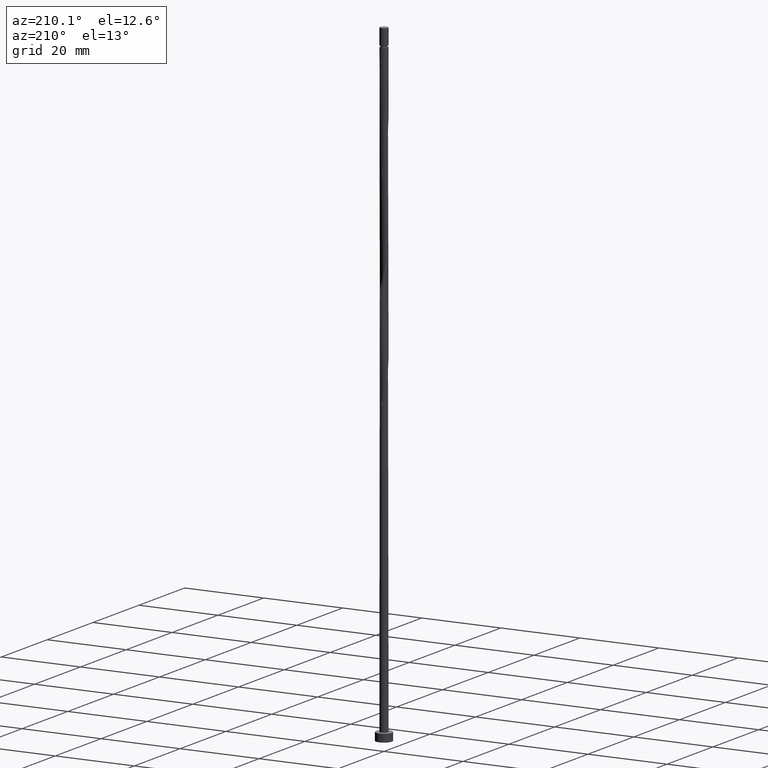
[diagram: clean part render]
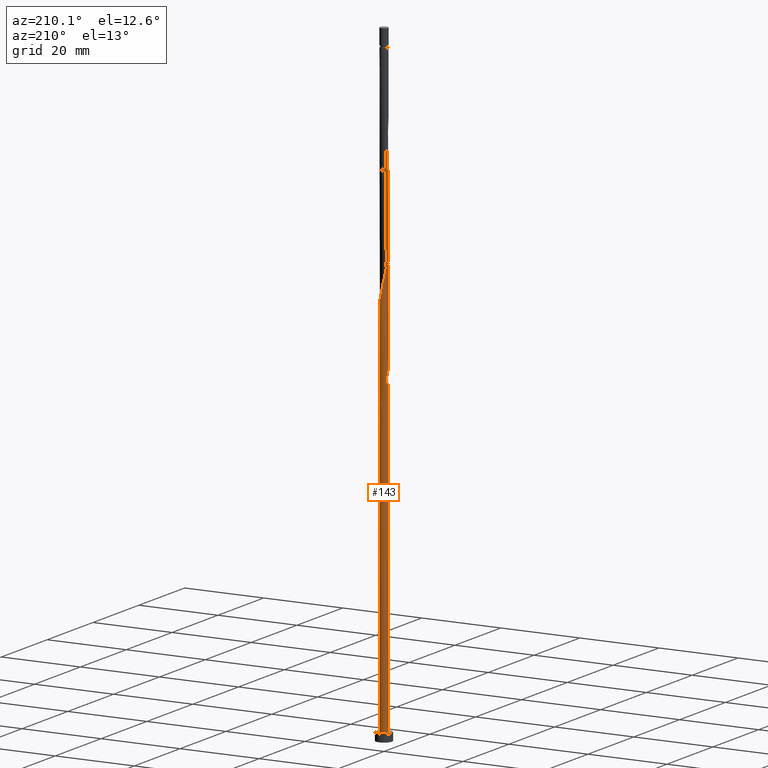
[diagram: same view with one face highlighted and labeled with its STEP entity id]
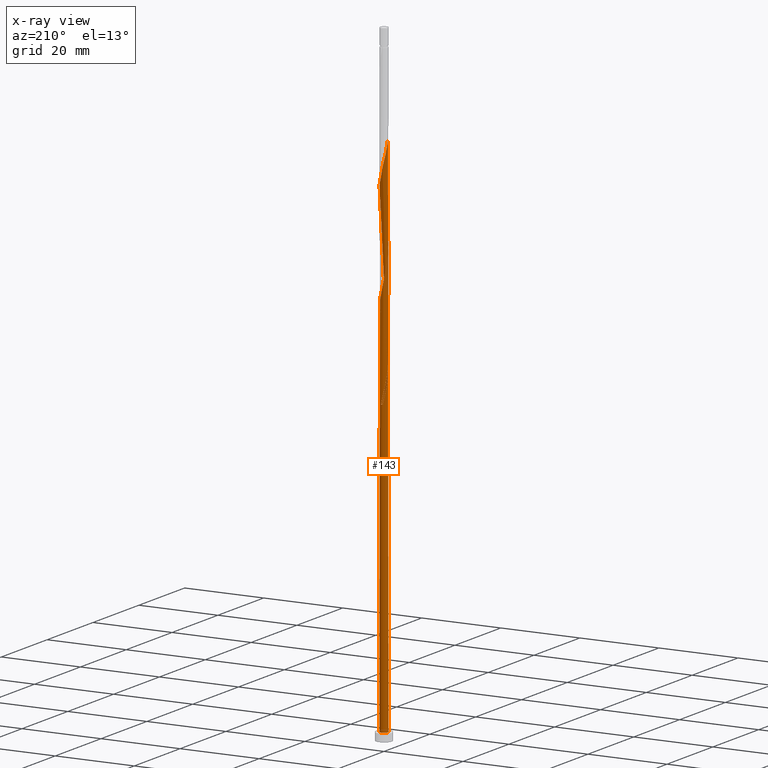
[diagram: x-ray of the same camera — body ghosted, the highlighted face saturated]
A machine part, auxiliary view. The second image highlights one B-rep face of the part: STEP entity #143.
The next image is the same camera in x-ray: the body ghosted, the highlighted face saturated — about 0% of this face is hidden behind the body in this view.
In plain terms, the highlighted cylindrical surface (bore or boss wall) has radius 1 mm, axis along (-0, -0, -1).
Its self-contained STEP definition (entity closure, byte-faithful):
#11 = CARTESIAN_POINT ( 'NONE',  ( -0.6972353404242072061, 0.7168422979034807518, 131.3740968072469002 ) ) ;
#16 = CARTESIAN_POINT ( 'NONE',  ( -1.000000000000001554, 0.02877552652382344908, 83.01054419092046999 ) ) ;
#24 = CARTESIAN_POINT ( 'NONE',  ( -0.8709502235331723075, 0.4913712528501434917, 132.5862180193680615 ) ) ;
#25 = EDGE_CURVE ( 'NONE', #42, #664, #83, .T. ) ;
#42 = VERTEX_POINT ( 'NONE', #848 ) ;
#43 = DIRECTION ( 'NONE',  ( -0.000000000000000000, -0.000000000000000000, -1.000000000000000000 ) ) ;
#48 = CARTESIAN_POINT ( 'NONE',  ( -0.7242137496448685097, -0.7044051693801141045, 84.70743014058018616 ) ) ;
#54 = CARTESIAN_POINT ( 'NONE',  ( -0.3624206617887645865, -0.9320146264456351526, 86.52561195876202760 ) ) ;
#64 = CARTESIAN_POINT ( 'NONE',  ( -0.8709502235331723075, 0.4913712528501434917, 79.25288468603473291 ) ) ;
#79 = CARTESIAN_POINT ( 'NONE',  ( 0.8003017030802060949, -0.6165949901442836500, 91.98015741330743822 ) ) ;
#83 =( BOUNDED_CURVE ( )  B_SPLINE_CURVE ( 2, ( #355, #16, #1322, #983, #1076, #1447, #1527, #814, #1300, #1182, #582, #1065, #477, #606, #483 ),
 .UNSPECIFIED., .F., .T. ) 
 B_SPLINE_CURVE_WITH_KNOTS ( ( 3, 2, 2, 2, 2, 2, 2, 3 ),
 ( 0.9295252162417509956, 0.9318181818181817677, 0.9431818181818182323, 0.9545454545454545858, 0.9659090909090909394, 0.9772727272727272929, 0.9886363636363636465, 1.000000000000000000 ),
 .UNSPECIFIED. ) 
 CURVE ( )  GEOMETRIC_REPRESENTATION_ITEM ( )  RATIONAL_B_SPLINE_CURVE ( ( 0.9061101570135536853, 0.9072237824201359047, 0.9090909090909136125, 0.8998376744372159619, 0.9090909090909136125, 0.8998376744372159619, 0.9090909090909136125, 0.8998376744372159619, 0.9090909090909136125, 0.8998376744372159619, 0.9090909090909136125, 0.8998376744372159619, 0.9090909090909136125, 0.8998376744372159619, 0.9090909090909136125 ) ) 
 REPRESENTATION_ITEM ( '' )  );
#84 = CARTESIAN_POINT ( 'NONE',  ( -1.006613054557666365, 0.08603694682049639608, 107.7377331708832457 ) ) ;
#90 = CARTESIAN_POINT ( 'NONE',  ( -0.7242137496448685097, -0.7044051693801141045, 111.3740968072468576 ) ) ;
#91 =( BOUNDED_CURVE ( )  B_SPLINE_CURVE ( 2, ( #287, #1157, #1004, #1119, #1150, #908, #64, #297, #544, #786, #427 ),
 .UNSPECIFIED., .F., .T. ) 
 B_SPLINE_CURVE_WITH_KNOTS ( ( 3, 2, 2, 2, 2, 3 ),
 ( 0.000000000000000000, 0.01136363636363635354, 0.02272727272727270709, 0.03409090909090906063, 0.04545454545454541417, 0.05452521624175114823 ),
 .UNSPECIFIED. ) 
 CURVE ( )  GEOMETRIC_REPRESENTATION_ITEM ( )  RATIONAL_B_SPLINE_CURVE ( ( 0.9090909090909238266, 0.8998376744372262870, 0.9090909090909238266, 0.8998376744372262870, 0.9090909090909238266, 0.8998376744372262870, 0.9090909090909238266, 0.8998376744372262870, 0.9090909090909238266, 0.9017048011080037728, 0.9061101570135640104 ) ) 
 REPRESENTATION_ITEM ( '' )  );
#96 = CARTESIAN_POINT ( 'NONE',  ( 0.8933318736010401606, 0.4718372192107813112, 96.82864226179233924 ) ) ;
#107 = CARTESIAN_POINT ( 'NONE',  ( 0.8933318736010401606, 0.4718372192107813112, 123.4953089284589822 ) ) ;
#115 = CARTESIAN_POINT ( 'NONE',  ( 0.2284171888200486611, 0.9841228509061528129, 127.1316725648226367 ) ) ;
#123 = DIRECTION ( 'NONE',  ( 1.000000000000000000, 0.000000000000000000, 0.000000000000000000 ) ) ;
#128 = ORIENTED_EDGE ( 'NONE', *, *, #910, .T. ) ;
#141 = CARTESIAN_POINT ( 'NONE',  ( -0.8003017030802060949, 0.6165949901442834280, 131.9801574133074951 ) ) ;
#143 = ADVANCED_FACE ( 'NONE', ( #524 ), #1337, .T. ) ;
#151 = CARTESIAN_POINT ( 'NONE',  ( -1.000000000000000000, 0.000000000000000000, 160.0000000000000000 ) ) ;
#197 = CARTESIAN_POINT ( 'NONE',  ( 0.5941689777682084284, -0.8170896056626774095, 117.4347028678529483 ) ) ;
#202 = CARTESIAN_POINT ( 'NONE',  ( 0.08516121475689687748, 0.9963671850784390216, 101.0710665042165743 ) ) ;
#207 = CARTESIAN_POINT ( 'NONE',  ( 0.1989974874213288336, -0.9800000000000004263, 88.94985438300443548 ) ) ;
#216 = CARTESIAN_POINT ( 'NONE',  ( 0.3624206617887643089, 0.9320146264456351526, 99.85894529209537041 ) ) ;
#224 = CARTESIAN_POINT ( 'NONE',  ( -0.9900775620072758132, -0.2010438236649823851, 108.9498543830044355 ) ) ;
#241 = CARTESIAN_POINT ( 'NONE',  ( 1.000000000000000000, 0.000000000000000000, 2.000000000000000000 ) ) ;
#254 = CARTESIAN_POINT ( 'NONE',  ( -0.1989974874213286948, 0.9800000000000004263, 128.9498543830044355 ) ) ;
#264 = CARTESIAN_POINT ( 'NONE',  ( 0.08516121475689687748, 0.9963671850784390216, 127.7377331708832457 ) ) ;
#287 = CARTESIAN_POINT ( 'NONE',  ( -0.1989974874213288059, 0.9800000000000004263, 75.61652104967110688 ) ) ;
#297 = CARTESIAN_POINT ( 'NONE',  ( -0.9415987439861386310, 0.3661475155560032224, 79.85894529209535619 ) ) ;
#317 = CARTESIAN_POINT ( 'NONE',  ( 1.006613054557666365, -0.08603694682049632669, 94.40439983754984610 ) ) ;
#322 = CARTESIAN_POINT ( 'NONE',  ( 0.6103189422011741083, 0.7921557856826160204, 125.3134907466408094 ) ) ;
#326 = CARTESIAN_POINT ( 'NONE',  ( 0.4670345966523055115, -0.8842390432059766825, 90.16197559512565363 ) ) ;
#332 = CARTESIAN_POINT ( 'NONE',  ( -0.3399002155364027611, 0.9513884807492754003, 102.8892483223983874 ) ) ;
#337 = CIRCLE ( 'NONE', #1409, 1.000000000000000000 ) ;
#340 = CARTESIAN_POINT ( 'NONE',  ( 0.9983453082824710334, 0.05750343842224297369, 121.6771271102771550 ) ) ;
#349 = CARTESIAN_POINT ( 'NONE',  ( -1.000000000000001554, 1.495682070349635480E-16, 134.7670665703702184 ) ) ;
#355 = CARTESIAN_POINT ( 'NONE',  ( -1.000000000000001554, -5.234887246223783469E-17, 83.13264219563870938 ) ) ;
#361 = VERTEX_POINT ( 'NONE', #995 ) ;
#382 = LINE ( 'NONE', #151, #1028 ) ;
#391 = DIRECTION ( 'NONE',  ( 1.000000000000000000, 0.000000000000000000, 0.000000000000000000 ) ) ;
#407 = ORIENTED_EDGE ( 'NONE', *, *, #1009, .T. ) ;
#408 = DIRECTION ( 'NONE',  ( -1.000000000000000000, 0.000000000000000000, 0.000000000000000000 ) ) ;
#410 = CARTESIAN_POINT ( 'NONE',  ( 0.000000000000000000, 0.000000000000000000, 2.000000000000000000 ) ) ;
#416 = VERTEX_POINT ( 'NONE', #504 ) ;
#427 = CARTESIAN_POINT ( 'NONE',  ( -1.000000000000001554, 1.495682070349635480E-16, 81.43373323703687561 ) ) ;
#439 = CARTESIAN_POINT ( 'NONE',  ( -0.8709502235331723075, 0.4913712528501434917, 105.9195513527014043 ) ) ;
#445 = CARTESIAN_POINT ( 'NONE',  ( 0.3399002155364027056, -0.9513884807492758444, 116.2225816557316733 ) ) ;
#451 = CARTESIAN_POINT ( 'NONE',  ( 0.4670345966523055115, -0.8842390432059766825, 116.8286422617923535 ) ) ;
#461 = CARTESIAN_POINT ( 'NONE',  ( 0.9741058992719027199, -0.2260922311882496982, 120.4650058981559653 ) ) ;
#472 = CARTESIAN_POINT ( 'NONE',  ( -0.9741058992719027199, 0.2260922311882497537, 107.1316725648226367 ) ) ;
#477 = CARTESIAN_POINT ( 'NONE',  ( -0.08516121475689676645, 0.9963671850784390216, 76.82864226179232503 ) ) ;
#483 = CARTESIAN_POINT ( 'NONE',  ( 0.1989974874213292499, 0.9800000000000004263, 75.61652104967110688 ) ) ;
#504 = CARTESIAN_POINT ( 'NONE',  ( -0.1989974874213288059, 0.9800000000000004263, 75.61652104967110688 ) ) ;
#507 = CARTESIAN_POINT ( 'NONE',  ( -1.000000000000000000, 0.000000000000000000, 2.000000000000000000 ) ) ;
#510 = AXIS2_PLACEMENT_3D ( 'NONE', #1123, #43, #408 ) ;
#524 = FACE_OUTER_BOUND ( 'NONE', #1124, .T. ) ;
#528 = CARTESIAN_POINT ( 'NONE',  ( -0.6103189422011742193, -0.7921557856826155763, 85.31349074664082366 ) ) ;
#537 = CARTESIAN_POINT ( 'NONE',  ( -0.2284171888200485223, -0.9841228509061528129, 87.13167256482263667 ) ) ;
#544 = CARTESIAN_POINT ( 'NONE',  ( -0.9741058992719027199, 0.2260922311882497537, 80.46500589815596527 ) ) ;
#559 = CARTESIAN_POINT ( 'NONE',  ( 0.9983453082824710334, 0.05750343842224297369, 95.01046044361048359 ) ) ;
#565 = CARTESIAN_POINT ( 'NONE',  ( -0.2284171888200485223, -0.9841228509061528129, 113.7983392314892654 ) ) ;
#571 = CARTESIAN_POINT ( 'NONE',  ( -0.6103189422011742193, -0.7921557856826155763, 111.9801574133074666 ) ) ;
#577 = CARTESIAN_POINT ( 'NONE',  ( -0.9417047178041579869, -0.3364405214378820008, 109.5559149890650730 ) ) ;
#582 = CARTESIAN_POINT ( 'NONE',  ( -0.3624206617887644200, 0.9320146264456352636, 78.04076347391354318 ) ) ;
#586 = CARTESIAN_POINT ( 'NONE',  ( -0.6972353404242072061, 0.7168422979034807518, 104.7074301405801862 ) ) ;
#594 = VECTOR ( 'NONE', #1219, 1000.000000000000000 ) ;
#595 = ORIENTED_EDGE ( 'NONE', *, *, #638, .F. ) ;
#606 = CARTESIAN_POINT ( 'NONE',  ( 0.05809475930625499634, 1.008611519250725230, 76.22258165573171595 ) ) ;
#607 = LINE ( 'NONE', #965, #594 ) ;
#631 = DIRECTION ( 'NONE',  ( -0.000000000000000000, -0.000000000000000000, -1.000000000000000000 ) ) ;
#638 = EDGE_CURVE ( 'NONE', #416, #970, #91, .T. ) ;
#660 = CARTESIAN_POINT ( 'NONE',  ( -1.000000000000001554, 1.495682070349635480E-16, 81.43373323703687561 ) ) ;
#664 = VERTEX_POINT ( 'NONE', #1130 ) ;
#678 = CARTESIAN_POINT ( 'NONE',  ( 0.8709502235331721964, -0.4913712528501436028, 92.58621801936808993 ) ) ;
#684 = CARTESIAN_POINT ( 'NONE',  ( -0.4670345966523056780, 0.8842390432059765715, 103.4953089284589964 ) ) ;
#689 = CARTESIAN_POINT ( 'NONE',  ( -0.5941689777682084284, 0.8170896056626775206, 104.1013695345195913 ) ) ;
#695 = EDGE_CURVE ( 'NONE', #970, #361, #824, .T. ) ;
#697 = CARTESIAN_POINT ( 'NONE',  ( 0.05809475930625497553, -1.008611519250724786, 88.34379377694381219 ) ) ;
#705 = CARTESIAN_POINT ( 'NONE',  ( 0.9417047178041579869, 0.3364405214378818343, 122.8892483223983874 ) ) ;
#722 = CARTESIAN_POINT ( 'NONE',  ( -0.9741058992719027199, 0.2260922311882497537, 133.7983392314893081 ) ) ;
#732 = CARTESIAN_POINT ( 'NONE',  ( -0.9415987439861386310, 0.3661475155560032224, 133.1922786254286848 ) ) ;
#737 = ORIENTED_EDGE ( 'NONE', *, *, #695, .F. ) ;
#743 = EDGE_CURVE ( 'NONE', #826, #1025, #1504, .T. ) ;
#748 = CARTESIAN_POINT ( 'NONE',  ( -0.05809475930625484369, 1.008611519250725008, 128.3437937769438122 ) ) ;
#761 = EDGE_CURVE ( 'NONE', #361, #42, #607, .T. ) ;
#767 = CARTESIAN_POINT ( 'NONE',  ( -0.8933318736010399386, -0.4718372192107817553, 83.49530892845896801 ) ) ;
#786 = CARTESIAN_POINT ( 'NONE',  ( -1.000000000000001776, 0.1145289273851202300, 80.94777328406559036 ) ) ;
#790 = CARTESIAN_POINT ( 'NONE',  ( 0.4964241347574799290, 0.8799064019851173812, 125.9195513527014185 ) ) ;
#795 = CARTESIAN_POINT ( 'NONE',  ( 0.3624206617887643089, 0.9320146264456351526, 126.5256119587620276 ) ) ;
#800 = CARTESIAN_POINT ( 'NONE',  ( -0.05809475930625484369, 1.008611519250725008, 101.6771271102771834 ) ) ;
#808 = CARTESIAN_POINT ( 'NONE',  ( 0.05809475930625497553, -1.008611519250724786, 115.0104604436104836 ) ) ;
#814 = CARTESIAN_POINT ( 'NONE',  ( -0.7242137496448687317, 0.7044051693801144376, 79.85894529209531356 ) ) ;
#816 = CARTESIAN_POINT ( 'NONE',  ( 0.9900775620072758132, 0.2010438236649822463, 122.2831877163377783 ) ) ;
#824 =( BOUNDED_CURVE ( )  B_SPLINE_CURVE ( 2, ( #660, #1037, #1495, #888, #1361, #767, #1253, #48, #528, #1262, #54, #537, #1020, #697, #207, #1287, #326, #1411, #1399, #79, #678, #1164, #1392, #317, #559, #1279, #927, #96, #1531, #1284, #1051, #1040, #216, #1521, #202, #800, #1302, #332, #684, #689, #586, #1175, #439, #941, #472, #84, #1167, #224, #577, #1059, #1513, #90, #571, #1162, #1501, #565, #1386, #808, #1046, #445, #451, #197, #920, #1506, #932, #1403, #461, #1295, #340, #816, #705, #107, #1184, #1068, #322, #790, #795, #115, #264, #748, #254, #1417, #955, #1083, #11, #141, #24, #732, #722, #1425, #349 ),
 .UNSPECIFIED., .F., .T. ) 
 B_SPLINE_CURVE_WITH_KNOTS ( ( 3, 2, 2, 2, 2, 2, 2, 2, 2, 2, 2, 2, 2, 2, 2, 2, 2, 2, 2, 2, 2, 2, 2, 2, 2, 2, 2, 2, 2, 2, 2, 2, 2, 2, 2, 2, 2, 2, 2, 2, 2, 2, 2, 2, 2, 3 ),
 ( 0.05452521624175114823, 0.05681818181818176772, 0.06818181818181823228, 0.07954545454545458583, 0.09090909090909093937, 0.1022727272727272929, 0.1136363636363636465, 0.1250000000000000000, 0.1363636363636363535, 0.1477272727272727071, 0.1590909090909090606, 0.1704545454545454142, 0.1818181818181817677, 0.1931818181818182323, 0.2045454545454545858, 0.2159090909090909394, 0.2272727272727272929, 0.2386363636363636465, 0.2500000000000000000, 0.2613636363636363535, 0.2727272727272727071, 0.2840909090909090606, 0.2954545454545454142, 0.3068181818181817677, 0.3181818181818182323, 0.3295454545454545858, 0.3409090909090909394, 0.3522727272727272929, 0.3636363636363636465, 0.3750000000000000000, 0.3863636363636363535, 0.3977272727272727071, 0.4090909090909090606, 0.4204545454545454142, 0.4318181818181817677, 0.4431818181818182323, 0.4545454545454545858, 0.4659090909090909394, 0.4772727272727272929, 0.4886363636363636465, 0.5000000000000000000, 0.5113636363636363535, 0.5227272727272727071, 0.5340909090909091717, 0.5454545454545454142, 0.5545252162417514397 ),
 .UNSPECIFIED. ) 
 CURVE ( )  GEOMETRIC_REPRESENTATION_ITEM ( )  RATIONAL_B_SPLINE_CURVE ( ( 0.9061101570135640104, 0.9072237824201462297, 0.9090909090909238266, 0.8998376744372262870, 0.9090909090909238266, 0.8998376744372262870, 0.9090909090909238266, 0.8998376744372262870, 0.9090909090909238266, 0.8998376744372262870, 0.9090909090909238266, 0.8998376744372262870, 0.9090909090909238266, 0.8998376744372262870, 0.9090909090909238266, 0.8998376744372262870, 0.9090909090909238266, 0.8998376744372262870, 0.9090909090909238266, 0.8998376744372262870, 0.9090909090909238266, 0.8998376744372262870, 0.9090909090909238266, 0.8998376744372262870, 0.9090909090909238266, 0.8998376744372262870, 0.9090909090909238266, 0.8998376744372262870, 0.9090909090909238266, 0.8998376744372262870, 0.9090909090909238266, 0.8998376744372262870, 0.9090909090909238266, 0.8998376744372262870, 0.9090909090909238266, 0.8998376744372262870, 0.9090909090909238266, 0.8998376744372262870, 0.9090909090909238266, 0.8998376744372262870, 0.9090909090909238266, 0.8998376744372262870, 0.9090909090909238266, 0.8998376744372262870, 0.9090909090909238266, 0.8998376744372262870, 0.9090909090909238266, 0.8998376744372262870, 0.9090909090909238266, 0.8998376744372262870, 0.9090909090909238266, 0.8998376744372262870, 0.9090909090909238266, 0.8998376744372262870, 0.9090909090909238266, 0.8998376744372262870, 0.9090909090909238266, 0.8998376744372262870, 0.9090909090909238266, 0.8998376744372262870, 0.9090909090909238266, 0.8998376744372262870, 0.9090909090909238266, 0.8998376744372262870, 0.9090909090909238266, 0.8998376744372262870, 0.9090909090909238266, 0.8998376744372262870, 0.9090909090909238266, 0.8998376744372262870, 0.9090909090909238266, 0.8998376744372262870, 0.9090909090909238266, 0.8998376744372262870, 0.9090909090909238266, 0.8998376744372262870, 0.9090909090909238266, 0.8998376744372262870, 0.9090909090909238266, 0.8998376744372262870, 0.9090909090909238266, 0.8998376744372262870, 0.9090909090909238266, 0.8998376744372262870, 0.9090909090909238266, 0.8998376744372262870, 0.9090909090909238266, 0.8998376744372262870, 0.9090909090909238266, 0.9017048011080036618, 0.9061101570135643435 ) ) 
 REPRESENTATION_ITEM ( '' )  );
#826 = VERTEX_POINT ( 'NONE', #241 ) ;
#848 = CARTESIAN_POINT ( 'NONE',  ( -1.000000000000001554, -5.234887246223783469E-17, 83.13264219563869517 ) ) ;
#849 = ORIENTED_EDGE ( 'NONE', *, *, #761, .F. ) ;
#888 = CARTESIAN_POINT ( 'NONE',  ( -0.9900775620072758132, -0.2010438236649823851, 82.28318771633777828 ) ) ;
#892 = DIRECTION ( 'NONE',  ( -1.000000000000000000, 0.000000000000000000, 0.000000000000000000 ) ) ;
#905 = ORIENTED_EDGE ( 'NONE', *, *, #25, .F. ) ;
#908 = CARTESIAN_POINT ( 'NONE',  ( -0.8003017030802060949, 0.6165949901442834280, 78.64682407997413804 ) ) ;
#910 = EDGE_CURVE ( 'NONE', #970, #1025, #382, .T. ) ;
#920 = CARTESIAN_POINT ( 'NONE',  ( 0.6972353404242072061, -0.7168422979034807518, 118.0407634739135290 ) ) ;
#927 = CARTESIAN_POINT ( 'NONE',  ( 0.9417047178041579869, 0.3364405214378818343, 96.22258165573171595 ) ) ;
#932 = CARTESIAN_POINT ( 'NONE',  ( 0.8709502235331721964, -0.4913712528501436028, 119.2528846860347471 ) ) ;
#941 = CARTESIAN_POINT ( 'NONE',  ( -0.9415987439861386310, 0.3661475155560032224, 106.5256119587620134 ) ) ;
#955 = CARTESIAN_POINT ( 'NONE',  ( -0.4670345966523056780, 0.8842390432059765715, 130.1619755951256536 ) ) ;
#965 = CARTESIAN_POINT ( 'NONE',  ( -1.000000000000000000, 0.000000000000000000, 160.0000000000000000 ) ) ;
#970 = VERTEX_POINT ( 'NONE', #1458 ) ;
#972 = EDGE_CURVE ( 'NONE', #1025, #826, #1345, .T. ) ;
#983 = CARTESIAN_POINT ( 'NONE',  ( -0.9900775620072760352, 0.2010438236649824961, 82.28318771633779249 ) ) ;
#995 = CARTESIAN_POINT ( 'NONE',  ( -1.000000000000001554, 1.495682070349635480E-16, 134.7670665703702184 ) ) ;
#1004 = CARTESIAN_POINT ( 'NONE',  ( -0.4670345966523056780, 0.8842390432059765715, 76.82864226179233924 ) ) ;
#1009 = EDGE_CURVE ( 'NONE', #416, #664, #337, .T. ) ;
#1020 = CARTESIAN_POINT ( 'NONE',  ( -0.08516121475689678033, -0.9963671850784390216, 87.73773317088321733 ) ) ;
#1023 = ORIENTED_EDGE ( 'NONE', *, *, #743, .T. ) ;
#1025 = VERTEX_POINT ( 'NONE', #507 ) ;
#1028 = VECTOR ( 'NONE', #631, 1000.000000000000000 ) ;
#1037 = CARTESIAN_POINT ( 'NONE',  ( -1.000000000000001554, -0.02877552652382526707, 81.55583124175510079 ) ) ;
#1040 = CARTESIAN_POINT ( 'NONE',  ( 0.4964241347574799290, 0.8799064019851173812, 99.25288468603474712 ) ) ;
#1046 = CARTESIAN_POINT ( 'NONE',  ( 0.1989974874213288336, -0.9800000000000004263, 115.6165210496711069 ) ) ;
#1051 = CARTESIAN_POINT ( 'NONE',  ( 0.6103189422011741083, 0.7921557856826160204, 98.64682407997413804 ) ) ;
#1059 = CARTESIAN_POINT ( 'NONE',  ( -0.8933318736010399386, -0.4718372192107817553, 110.1619755951256394 ) ) ;
#1065 = CARTESIAN_POINT ( 'NONE',  ( -0.2284171888200486333, 0.9841228509061528129, 77.43470286785293411 ) ) ;
#1068 = CARTESIAN_POINT ( 'NONE',  ( 0.7242137496448688427, 0.7044051693801136604, 124.7074301405801720 ) ) ;
#1076 = CARTESIAN_POINT ( 'NONE',  ( -0.9417047178041579869, 0.3364405214378821118, 81.67712711027716921 ) ) ;
#1083 = CARTESIAN_POINT ( 'NONE',  ( -0.5941689777682084284, 0.8170896056626775206, 130.7680362011862769 ) ) ;
#1119 = CARTESIAN_POINT ( 'NONE',  ( -0.5941689777682084284, 0.8170896056626775206, 77.43470286785293411 ) ) ;
#1123 = CARTESIAN_POINT ( 'NONE',  ( 0.000000000000000000, 0.000000000000000000, 160.0000000000000000 ) ) ;
#1124 = EDGE_LOOP ( 'NONE', ( #849, #737, #128, #1216, #1023, #1321, #595, #407, #905 ) ) ;
#1128 = DIRECTION ( 'NONE',  ( 0.000000000000000000, 0.000000000000000000, -1.000000000000000000 ) ) ;
#1130 = CARTESIAN_POINT ( 'NONE',  ( 0.1989974874213292499, 0.9800000000000004263, 75.61652104967110688 ) ) ;
#1150 = CARTESIAN_POINT ( 'NONE',  ( -0.6972353404242072061, 0.7168422979034807518, 78.04076347391352897 ) ) ;
#1157 = CARTESIAN_POINT ( 'NONE',  ( -0.3399002155364027611, 0.9513884807492754003, 76.22258165573173017 ) ) ;
#1162 = CARTESIAN_POINT ( 'NONE',  ( -0.4964241347574803176, -0.8799064019851171592, 112.5862180193680473 ) ) ;
#1164 = CARTESIAN_POINT ( 'NONE',  ( 0.9415987439861390751, -0.3661475155560029449, 93.19227862542867058 ) ) ;
#1167 = CARTESIAN_POINT ( 'NONE',  ( -0.9983453082824710334, -0.05750343842224310553, 108.3437937769438406 ) ) ;
#1175 = CARTESIAN_POINT ( 'NONE',  ( -0.8003017030802060949, 0.6165949901442834280, 105.3134907466407952 ) ) ;
#1182 = CARTESIAN_POINT ( 'NONE',  ( -0.4964241347574803176, 0.8799064019851173812, 78.64682407997412383 ) ) ;
#1184 = CARTESIAN_POINT ( 'NONE',  ( 0.8087728116229545572, 0.5881211942954477356, 124.1013695345195913 ) ) ;
#1199 = AXIS2_PLACEMENT_3D ( 'NONE', #1235, #1207, #123 ) ;
#1207 = DIRECTION ( 'NONE',  ( 0.000000000000000000, 0.000000000000000000, 1.000000000000000000 ) ) ;
#1216 = ORIENTED_EDGE ( 'NONE', *, *, #972, .T. ) ;
#1219 = DIRECTION ( 'NONE',  ( -0.000000000000000000, -0.000000000000000000, -1.000000000000000000 ) ) ;
#1230 = AXIS2_PLACEMENT_3D ( 'NONE', #410, #1275, #391 ) ;
#1235 = CARTESIAN_POINT ( 'NONE',  ( 0.000000000000000000, 0.000000000000000000, 2.000000000000000000 ) ) ;
#1253 = CARTESIAN_POINT ( 'NONE',  ( -0.8087728116229543351, -0.5881211942954478467, 84.10136953451957709 ) ) ;
#1262 = CARTESIAN_POINT ( 'NONE',  ( -0.4964241347574803176, -0.8799064019851171592, 85.91955135270139010 ) ) ;
#1269 = CARTESIAN_POINT ( 'NONE',  ( 0.000000000000000000, 0.000000000000000000, 75.61652104967110688 ) ) ;
#1275 = DIRECTION ( 'NONE',  ( 0.000000000000000000, 0.000000000000000000, 1.000000000000000000 ) ) ;
#1279 = CARTESIAN_POINT ( 'NONE',  ( 0.9900775620072758132, 0.2010438236649822463, 95.61652104967112109 ) ) ;
#1284 = CARTESIAN_POINT ( 'NONE',  ( 0.7242137496448688427, 0.7044051693801136604, 98.04076347391354318 ) ) ;
#1287 = CARTESIAN_POINT ( 'NONE',  ( 0.3399002155364027056, -0.9513884807492758444, 89.55591498906504455 ) ) ;
#1295 = CARTESIAN_POINT ( 'NONE',  ( 1.006613054557666365, -0.08603694682049632669, 121.0710665042165743 ) ) ;
#1300 = CARTESIAN_POINT ( 'NONE',  ( -0.6103189422011743304, 0.7921557856826161315, 79.25288468603474712 ) ) ;
#1302 = CARTESIAN_POINT ( 'NONE',  ( -0.1989974874213286948, 0.9800000000000004263, 102.2831877163377783 ) ) ;
#1321 = ORIENTED_EDGE ( 'NONE', *, *, #910, .F. ) ;
#1322 = CARTESIAN_POINT ( 'NONE',  ( -0.9983453082824710334, 0.05750343842224320962, 82.88924832239838736 ) ) ;
#1337 = CYLINDRICAL_SURFACE ( 'NONE', #510, 1.000000000000000000 ) ;
#1345 = CIRCLE ( 'NONE', #1230, 1.000000000000000000 ) ;
#1361 = CARTESIAN_POINT ( 'NONE',  ( -0.9417047178041579869, -0.3364405214378820008, 82.88924832239838736 ) ) ;
#1386 = CARTESIAN_POINT ( 'NONE',  ( -0.08516121475689678033, -0.9963671850784390216, 114.4043998375498745 ) ) ;
#1392 = CARTESIAN_POINT ( 'NONE',  ( 0.9741058992719027199, -0.2260922311882496982, 93.79833923148932229 ) ) ;
#1399 = CARTESIAN_POINT ( 'NONE',  ( 0.6972353404242072061, -0.7168422979034807518, 91.37409680724684335 ) ) ;
#1403 = CARTESIAN_POINT ( 'NONE',  ( 0.9415987439861390751, -0.3661475155560029449, 119.8589452920953704 ) ) ;
#1409 = AXIS2_PLACEMENT_3D ( 'NONE', #1269, #1128, #892 ) ;
#1411 = CARTESIAN_POINT ( 'NONE',  ( 0.5941689777682084284, -0.8170896056626774095, 90.76803620118626270 ) ) ;
#1417 = CARTESIAN_POINT ( 'NONE',  ( -0.3399002155364027611, 0.9513884807492754003, 129.5559149890650588 ) ) ;
#1425 = CARTESIAN_POINT ( 'NONE',  ( -1.000000000000002220, 0.1145289273851177042, 134.2811066173989332 ) ) ;
#1447 = CARTESIAN_POINT ( 'NONE',  ( -0.8933318736010402716, 0.4718372192107816998, 81.07106650421658856 ) ) ;
#1458 = CARTESIAN_POINT ( 'NONE',  ( -1.000000000000001554, 1.495682070349635480E-16, 81.43373323703687561 ) ) ;
#1495 = CARTESIAN_POINT ( 'NONE',  ( -0.9983453082824710334, -0.05750343842224310553, 81.67712711027716921 ) ) ;
#1501 = CARTESIAN_POINT ( 'NONE',  ( -0.3624206617887645865, -0.9320146264456351526, 113.1922786254286990 ) ) ;
#1504 = CIRCLE ( 'NONE', #1199, 1.000000000000000000 ) ;
#1506 = CARTESIAN_POINT ( 'NONE',  ( 0.8003017030802060949, -0.6165949901442836500, 118.6468240799741523 ) ) ;
#1513 = CARTESIAN_POINT ( 'NONE',  ( -0.8087728116229543351, -0.5881211942954478467, 110.7680362011862627 ) ) ;
#1521 = CARTESIAN_POINT ( 'NONE',  ( 0.2284171888200486611, 0.9841228509061528129, 100.4650058981559653 ) ) ;
#1527 = CARTESIAN_POINT ( 'NONE',  ( -0.8087728116229543351, 0.5881211942954479577, 80.46500589815595106 ) ) ;
#1531 = CARTESIAN_POINT ( 'NONE',  ( 0.8087728116229545572, 0.5881211942954477356, 97.43470286785293411 ) ) ;